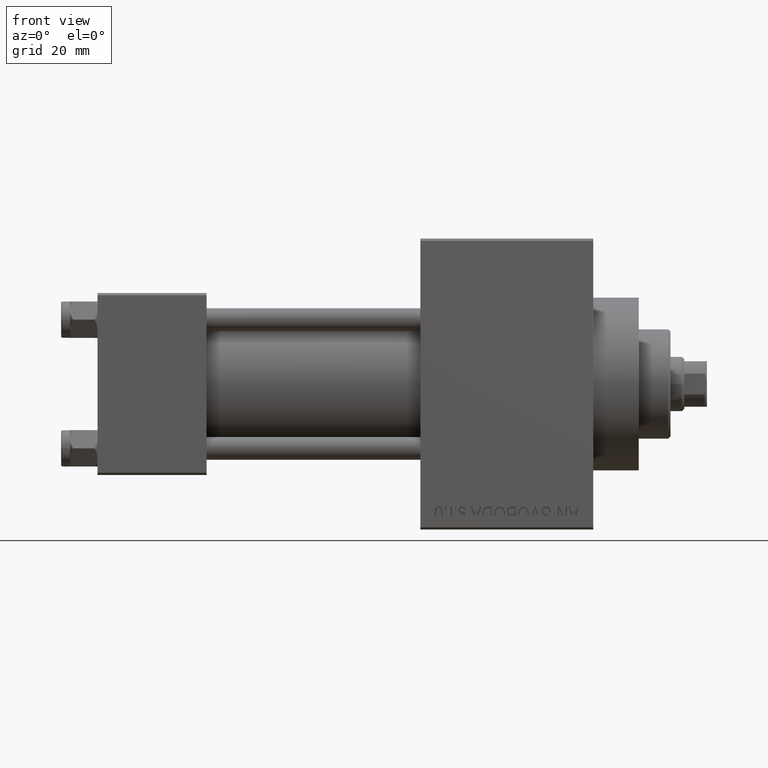
[diagram: clean part render]
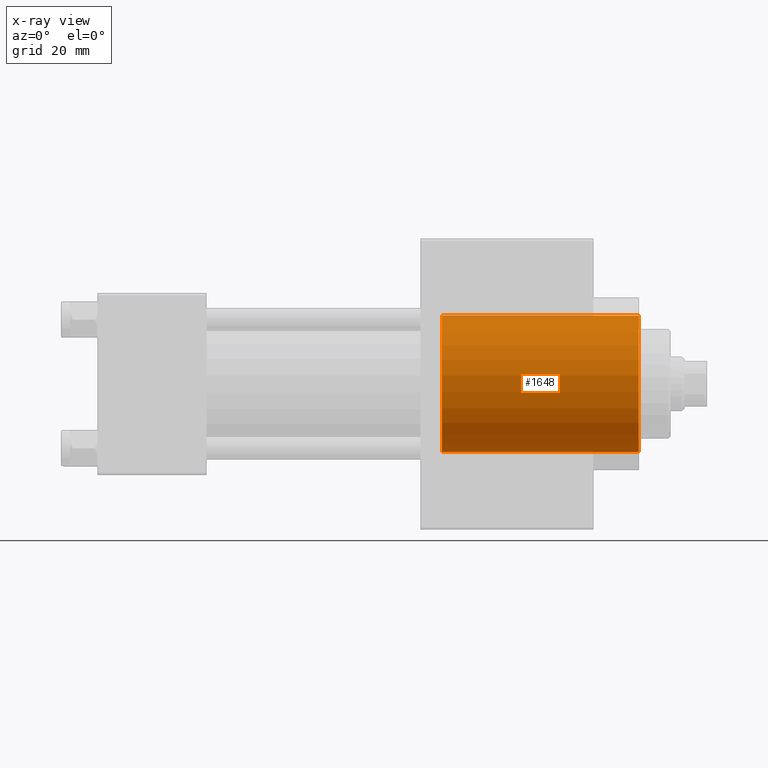
[diagram: x-ray — body ghosted, one internal face saturated and labeled with its STEP entity id]
A machine part, front view, then the same camera in x-ray: the body is ghosted and one INTERNAL B-rep face — a face not visible from any outside direction — is saturated and labeled: STEP entity #1648.
In plain terms, the highlighted cylindrical surface (partial cylindrical patch) has radius 15 mm, axis along (1, 0, 0).
Its self-contained STEP definition (entity closure, byte-faithful):
#173 = LINE ( 'NONE', #40177, #10405 ) ;
#584 = CARTESIAN_POINT ( 'NONE',  ( 119.0000000000000142, 1.836970198721029589E-15, 15.00000000000000000 ) ) ;
#1648 = ADVANCED_FACE ( 'NONE', ( #40767 ), #36492, .F. ) ;
#2228 = LINE ( 'NONE', #9818, #17103 ) ;
#3153 = DIRECTION ( 'NONE',  ( 1.000000000000000000, -0.000000000000000000, -0.000000000000000000 ) ) ;
#3767 = DIRECTION ( 'NONE',  ( 1.000000000000000000, -0.000000000000000000, -0.000000000000000000 ) ) ;
#5590 = VERTEX_POINT ( 'NONE', #13313 ) ;
#6168 = VERTEX_POINT ( 'NONE', #13442 ) ;
#6630 = CARTESIAN_POINT ( 'NONE',  ( 75.73999999999999488, 0.000000000000000000, 0.000000000000000000 ) ) ;
#9385 = ORIENTED_EDGE ( 'NONE', *, *, #36306, .F. ) ;
#9818 = CARTESIAN_POINT ( 'NONE',  ( 75.73999999999999488, 1.836970198721029589E-15, 15.00000000000000000 ) ) ;
#10405 = VECTOR ( 'NONE', #3767, 1000.000000000000000 ) ;
#11483 = DIRECTION ( 'NONE',  ( 1.000000000000000000, -0.000000000000000000, -0.000000000000000000 ) ) ;
#12919 = ORIENTED_EDGE ( 'NONE', *, *, #44845, .T. ) ;
#13313 = CARTESIAN_POINT ( 'NONE',  ( 75.73999999999999488, 1.836970198721029589E-15, 15.00000000000000000 ) ) ;
#13328 = DIRECTION ( 'NONE',  ( 1.000000000000000000, 0.000000000000000000, 0.000000000000000000 ) ) ;
#13442 = CARTESIAN_POINT ( 'NONE',  ( 119.0000000000000142, 0.000000000000000000, -15.00000000000000000 ) ) ;
#15520 = CARTESIAN_POINT ( 'NONE',  ( 75.73999999999999488, 0.000000000000000000, 0.000000000000000000 ) ) ;
#16741 = EDGE_CURVE ( 'NONE', #33783, #6168, #173, .T. ) ;
#16776 = ORIENTED_EDGE ( 'NONE', *, *, #42754, .T. ) ;
#17103 = VECTOR ( 'NONE', #3153, 1000.000000000000000 ) ;
#17813 = DIRECTION ( 'NONE',  ( 0.000000000000000000, 0.000000000000000000, -1.000000000000000000 ) ) ;
#22124 = CARTESIAN_POINT ( 'NONE',  ( 75.73999999999999488, 0.000000000000000000, -15.00000000000000000 ) ) ;
#29885 = AXIS2_PLACEMENT_3D ( 'NONE', #15520, #11483, #37195 ) ;
#30097 = CIRCLE ( 'NONE', #36961, 15.00000000000000000 ) ;
#30965 = DIRECTION ( 'NONE',  ( 0.000000000000000000, 0.000000000000000000, -1.000000000000000000 ) ) ;
#31784 = EDGE_LOOP ( 'NONE', ( #9385, #16776, #12919, #36890 ) ) ;
#32086 = CIRCLE ( 'NONE', #46542, 15.00000000000000000 ) ;
#33783 = VERTEX_POINT ( 'NONE', #22124 ) ;
#34548 = CARTESIAN_POINT ( 'NONE',  ( 119.0000000000000142, 0.000000000000000000, 0.000000000000000000 ) ) ;
#36306 = EDGE_CURVE ( 'NONE', #5590, #33783, #32086, .T. ) ;
#36492 = CYLINDRICAL_SURFACE ( 'NONE', #29885, 15.00000000000000000 ) ;
#36890 = ORIENTED_EDGE ( 'NONE', *, *, #16741, .F. ) ;
#36961 = AXIS2_PLACEMENT_3D ( 'NONE', #34548, #13328, #30965 ) ;
#37195 = DIRECTION ( 'NONE',  ( 0.000000000000000000, 0.000000000000000000, -1.000000000000000000 ) ) ;
#39708 = DIRECTION ( 'NONE',  ( 1.000000000000000000, 0.000000000000000000, 0.000000000000000000 ) ) ;
#40177 = CARTESIAN_POINT ( 'NONE',  ( 75.73999999999999488, 0.000000000000000000, -15.00000000000000000 ) ) ;
#40767 = FACE_OUTER_BOUND ( 'NONE', #31784, .T. ) ;
#42754 = EDGE_CURVE ( 'NONE', #5590, #45692, #2228, .T. ) ;
#44845 = EDGE_CURVE ( 'NONE', #45692, #6168, #30097, .T. ) ;
#45692 = VERTEX_POINT ( 'NONE', #584 ) ;
#46542 = AXIS2_PLACEMENT_3D ( 'NONE', #6630, #39708, #17813 ) ;